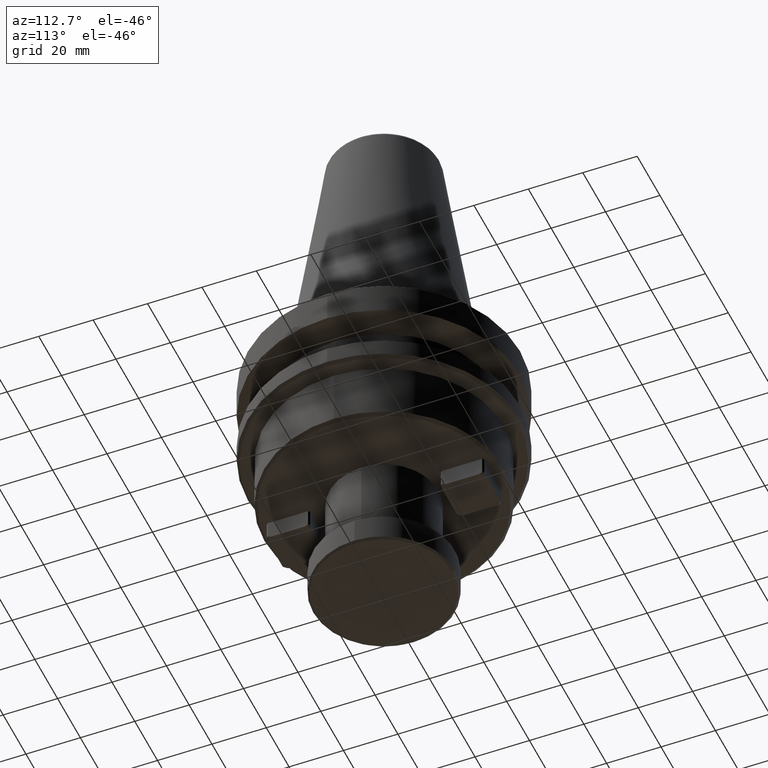
[diagram: clean part render]
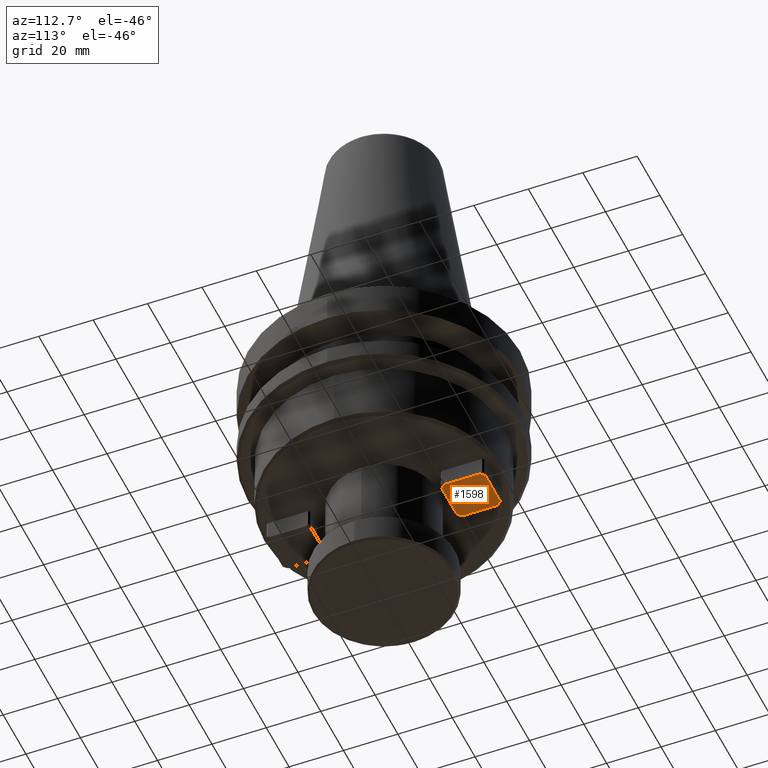
[diagram: same view with one face highlighted and labeled with its STEP entity id]
A machine part, auxiliary view. The second image highlights one B-rep face of the part: STEP entity #1598.
In plain terms, the highlighted planar face has unit normal (0, 0, 1).
Its self-contained STEP definition (entity closure, byte-faithful):
#66 = EDGE_CURVE ( 'NONE', #294, #713, #1777, .T. ) ;
#143 = DIRECTION ( 'NONE',  ( -1.000000000000000000, 2.168404344971008900E-016, 0.0000000000000000000 ) ) ;
#144 = CARTESIAN_POINT ( 'NONE',  ( 7.999999999999998200, 23.99999999999998900, -66.99999999999998600 ) ) ;
#189 = ORIENTED_EDGE ( 'NONE', *, *, #66, .F. ) ;
#219 = VECTOR ( 'NONE', #2602, 1000.000000000000100 ) ;
#294 = VERTEX_POINT ( 'NONE', #1055 ) ;
#337 = CARTESIAN_POINT ( 'NONE',  ( 6.551471862576195600, 23.99999999999998900, -66.99999999999998600 ) ) ;
#349 = CARTESIAN_POINT ( 'NONE',  ( 0.0000000000000000000, 0.0000000000000000000, -66.99999999999998600 ) ) ;
#396 = ORIENTED_EDGE ( 'NONE', *, *, #1799, .F. ) ;
#431 = LINE ( 'NONE', #1145, #2207 ) ;
#480 = VERTEX_POINT ( 'NONE', #846 ) ;
#546 = VECTOR ( 'NONE', #2335, 1000.000000000000000 ) ;
#619 = ORIENTED_EDGE ( 'NONE', *, *, #1230, .T. ) ;
#652 = VECTOR ( 'NONE', #2762, 1000.000000000000000 ) ;
#674 = VECTOR ( 'NONE', #2661, 1000.000000000000000 ) ;
#676 = CARTESIAN_POINT ( 'NONE',  ( -8.000000000000001800, 25.44852813742385300, -66.99999999999997200 ) ) ;
#681 = CARTESIAN_POINT ( 'NONE',  ( -8.000000000000001800, 38.55147186257620700, -66.99999999999998600 ) ) ;
#696 = DIRECTION ( 'NONE',  ( 1.000000000000000000, 0.0000000000000000000, -0.0000000000000000000 ) ) ;
#713 = VERTEX_POINT ( 'NONE', #681 ) ;
#714 = VERTEX_POINT ( 'NONE', #676 ) ;
#728 = LINE ( 'NONE', #144, #1719 ) ;
#846 = CARTESIAN_POINT ( 'NONE',  ( -6.551471862576155700, 23.99999999999999600, -66.99999999999998600 ) ) ;
#908 = LINE ( 'NONE', #1078, #2695 ) ;
#950 = VERTEX_POINT ( 'NONE', #337 ) ;
#1055 = CARTESIAN_POINT ( 'NONE',  ( -6.551471862576199200, 40.00000000000000700, -66.99999999999998600 ) ) ;
#1071 = LINE ( 'NONE', #2068, #546 ) ;
#1077 = DIRECTION ( 'NONE',  ( -1.000000000000000000, -0.0000000000000000000, 0.0000000000000000000 ) ) ;
#1078 = CARTESIAN_POINT ( 'NONE',  ( 8.000000000000000000, 40.00000000000000700, -66.99999999999998600 ) ) ;
#1109 = EDGE_LOOP ( 'NONE', ( #1852, #396, #189, #1890, #2237, #1850, #1523, #619 ) ) ;
#1145 = CARTESIAN_POINT ( 'NONE',  ( -8.000000000000000000, 25.44852813742385300, -66.99999999999998600 ) ) ;
#1156 = DIRECTION ( 'NONE',  ( 0.7071067811865436900, -0.7071067811865513500, 0.0000000000000000000 ) ) ;
#1230 = EDGE_CURVE ( 'NONE', #950, #480, #728, .T. ) ;
#1412 = CARTESIAN_POINT ( 'NONE',  ( 8.000000000000000000, 25.44852813742377900, -66.99999999999997200 ) ) ;
#1470 = FACE_OUTER_BOUND ( 'NONE', #1109, .T. ) ;
#1523 = ORIENTED_EDGE ( 'NONE', *, *, #2683, .F. ) ;
#1598 = ADVANCED_FACE ( 'NONE', ( #1470 ), #2157, .F. ) ;
#1670 = EDGE_CURVE ( 'NONE', #1885, #2270, #1071, .T. ) ;
#1718 = CARTESIAN_POINT ( 'NONE',  ( 6.551471862576178800, 40.00000000000000700, -66.99999999999998600 ) ) ;
#1719 = VECTOR ( 'NONE', #143, 1000.000000000000000 ) ;
#1726 = LINE ( 'NONE', #2282, #652 ) ;
#1777 = LINE ( 'NONE', #1814, #2284 ) ;
#1786 = CARTESIAN_POINT ( 'NONE',  ( 8.000000000000000000, 38.55147186257617900, -66.99999999999998600 ) ) ;
#1792 = EDGE_CURVE ( 'NONE', #1885, #1940, #1917, .T. ) ;
#1799 = EDGE_CURVE ( 'NONE', #713, #714, #2524, .T. ) ;
#1801 = DIRECTION ( 'NONE',  ( -0.7071067811865453500, -0.7071067811865496800, 0.0000000000000000000 ) ) ;
#1814 = CARTESIAN_POINT ( 'NONE',  ( -6.551471862576202700, 40.00000000000000700, -66.99999999999998600 ) ) ;
#1842 = DIRECTION ( 'NONE',  ( 0.0000000000000000000, 0.0000000000000000000, 1.000000000000000000 ) ) ;
#1850 = ORIENTED_EDGE ( 'NONE', *, *, #1670, .T. ) ;
#1852 = ORIENTED_EDGE ( 'NONE', *, *, #2473, .F. ) ;
#1885 = VERTEX_POINT ( 'NONE', #1786 ) ;
#1890 = ORIENTED_EDGE ( 'NONE', *, *, #2535, .F. ) ;
#1917 = LINE ( 'NONE', #2606, #219 ) ;
#1940 = VERTEX_POINT ( 'NONE', #1718 ) ;
#2068 = CARTESIAN_POINT ( 'NONE',  ( 8.000000000000000000, 40.00000000000000700, -66.99999999999998600 ) ) ;
#2157 = PLANE ( 'NONE',  #2461 ) ;
#2207 = VECTOR ( 'NONE', #1156, 1000.000000000000000 ) ;
#2237 = ORIENTED_EDGE ( 'NONE', *, *, #1792, .F. ) ;
#2270 = VERTEX_POINT ( 'NONE', #1412 ) ;
#2282 = CARTESIAN_POINT ( 'NONE',  ( 6.551471862576193800, 23.99999999999998600, -66.99999999999998600 ) ) ;
#2284 = VECTOR ( 'NONE', #1801, 1000.000000000000200 ) ;
#2335 = DIRECTION ( 'NONE',  ( -1.084202172485503200E-016, -1.000000000000000000, 0.0000000000000000000 ) ) ;
#2461 = AXIS2_PLACEMENT_3D ( 'NONE', #349, #1842, #696 ) ;
#2473 = EDGE_CURVE ( 'NONE', #714, #480, #431, .T. ) ;
#2524 = LINE ( 'NONE', #2601, #674 ) ;
#2535 = EDGE_CURVE ( 'NONE', #1940, #294, #908, .T. ) ;
#2601 = CARTESIAN_POINT ( 'NONE',  ( -8.000000000000000000, 40.00000000000000700, -66.99999999999998600 ) ) ;
#2602 = DIRECTION ( 'NONE',  ( -0.7071067811865454600, 0.7071067811865496800, 0.0000000000000000000 ) ) ;
#2606 = CARTESIAN_POINT ( 'NONE',  ( 8.000000000000000000, 38.55147186257617900, -66.99999999999998600 ) ) ;
#2661 = DIRECTION ( 'NONE',  ( -1.084202172485503400E-016, -1.000000000000000000, 0.0000000000000000000 ) ) ;
#2683 = EDGE_CURVE ( 'NONE', #950, #2270, #1726, .T. ) ;
#2695 = VECTOR ( 'NONE', #1077, 1000.000000000000000 ) ;
#2762 = DIRECTION ( 'NONE',  ( 0.7071067811865522400, 0.7071067811865429100, 0.0000000000000000000 ) ) ;